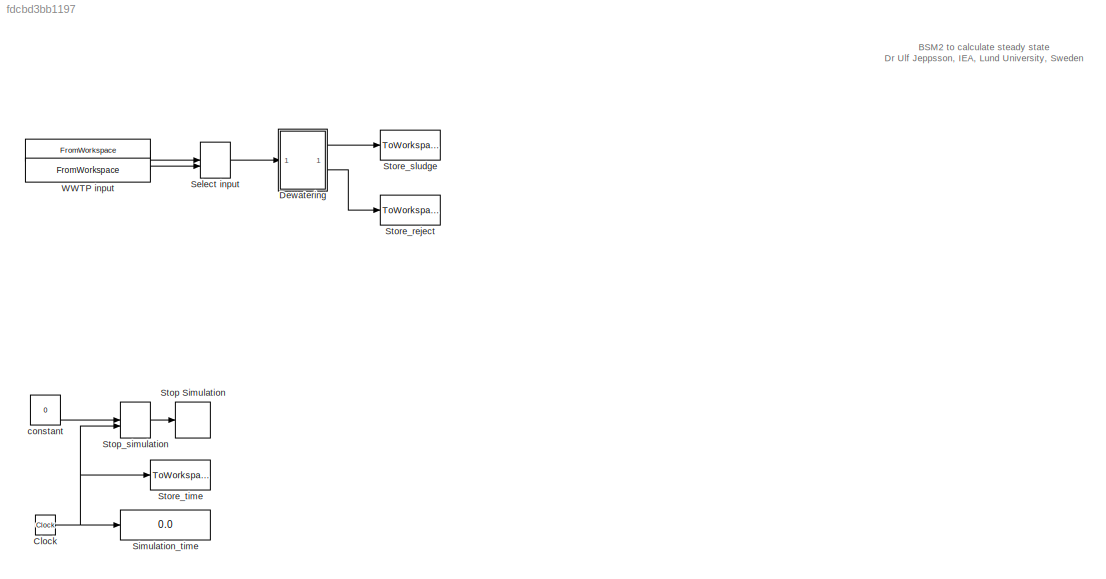
MODEL slx_fdcbd3bb1197
KIND model
CONFIG AbsTol = 1e-8
CONFIG EnableMultiTasking = off
CONFIG FixedStep = 0.01
CONFIG MaxStep = auto
CONFIG MinStep = auto
CONFIG RelTol = 1e-5
CONFIG SampleTimeConstraint = Unconstrained
CONFIG SolverName = ode15s
CONFIG StartTime = 0.0
CONFIG StopTime = 200
BLOCK [FromWorkspace]  
  OutputAfterFinalValue = Holding final value
  SampleTime = -1
  VariableName = CONSTINFLUENT_BSM2
  ZeroCross = off
BLOCK [Constant]  constant
  Value = 0
BLOCK [Clock] Clock
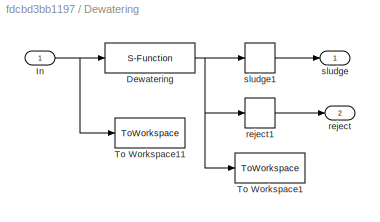
BLOCK [SubSystem] Dewatering
BLOCK [S-Function] Dewatering/Dewatering
  EnableBusSupport = off
  FunctionName = dewatering_bsm2
  Parameters = DEWATERINGPAR
  SFcnIsStateOwnerBlock = off
  SFunctionDeploymentMode = off
BLOCK [Inport] Dewatering/In
BLOCK [ToWorkspace] Dewatering/To Workspace1
  MaxDataPoints = inf
  VariableName = dewateringout
BLOCK [ToWorkspace] Dewatering/To Workspace11
  MaxDataPoints = inf
  VariableName = dewateringin
BLOCK [Outport] Dewatering/reject
  Port = 2
BLOCK [Selector] Dewatering/reject1
  IndexOptions = Index vector (dialog)
  Indices = [22:42]
  InputPortWidth = 42
  OutputSizes = 1
BLOCK [Outport] Dewatering/sludge
BLOCK [Selector] Dewatering/sludge1
  IndexOptions = Index vector (dialog)
  Indices = [1:21]
  InputPortWidth = 42
  OutputSizes = 1
BLOCK [ManualSwitch] Select input
BLOCK [Display] Simulation_time
  Decimation = 1
BLOCK [Stop] Stop Simulation
BLOCK [ManualSwitch] Stop_simulation
BLOCK [ToWorkspace] Store_reject
  MaxDataPoints = inf
  VariableName = reject
BLOCK [ToWorkspace] Store_sludge
  MaxDataPoints = inf
  VariableName = sludge
BLOCK [ToWorkspace] Store_time
  MaxDataPoints = inf
  VariableName = time
BLOCK [FromWorkspace] WWTP input
  OutputAfterFinalValue = Holding final value
  SampleTime = -1
  VariableName = DYNINFLUENT_BSM2
  ZeroCross = off
ANNOTATION (root): BSM2 to calculate steady state Dr Ulf Jeppsson, IEA, Lund University, Sweden
LINE  :1 -> Select input:1
LINE  constant:1 -> Stop_simulation:1
NET Clock:1 -> Simulation_time:1, Stop_simulation:2, Store_time:1
NET Dewatering/Dewatering:1 -> Dewatering/To Workspace1:1, Dewatering/reject1:1, Dewatering/sludge1:1
NET Dewatering/In:1 -> Dewatering/Dewatering:1, Dewatering/To Workspace11:1
LINE Dewatering/reject1:1 -> Dewatering/reject:1
LINE Dewatering/sludge1:1 -> Dewatering/sludge:1
LINE Dewatering:1 -> Store_sludge:1
LINE Dewatering:2 -> Store_reject:1
LINE Select input:1 -> Dewatering:1
LINE Stop_simulation:1 -> Stop Simulation:1
LINE WWTP input:1 -> Select input:2
note: NET lines group one-source signal fan-out (src -> all destinations, sorted); 1:1 wires keep LINE
